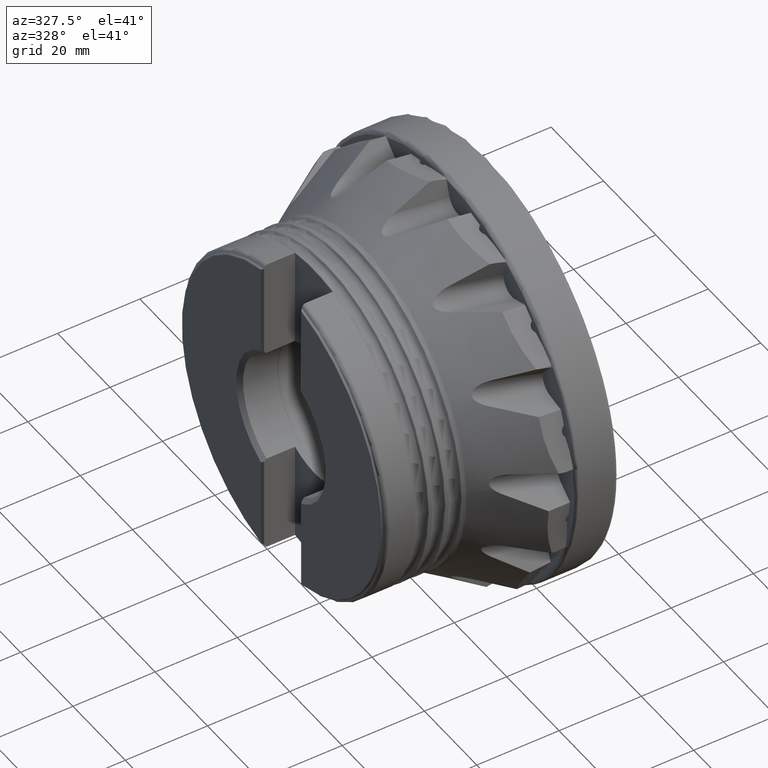
[diagram: clean part render]
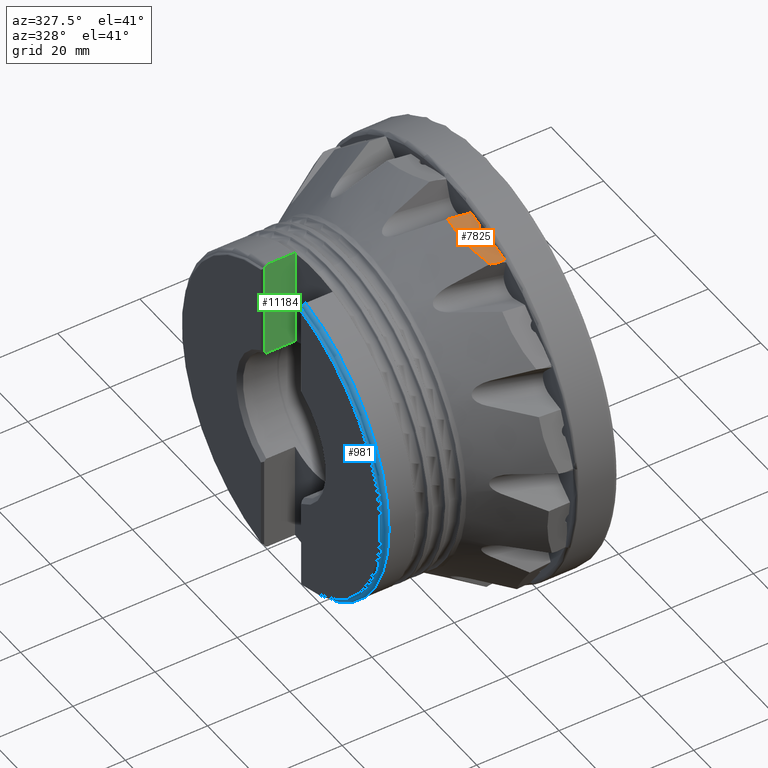
[diagram: same view with three faces highlighted in distinct colors, each labeled with its STEP entity id]
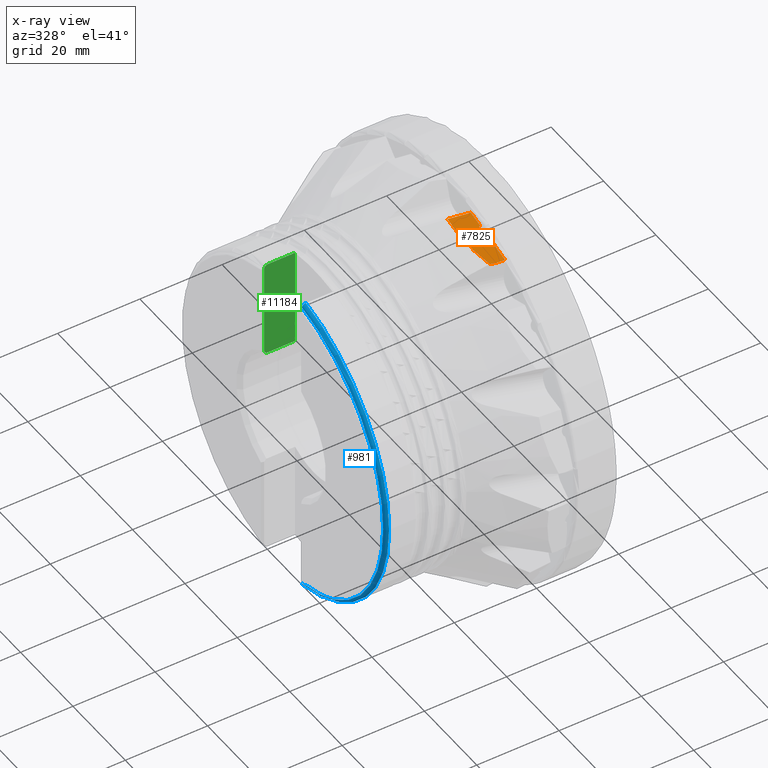
[diagram: x-ray of the same camera — body ghosted, the three highlighted faces saturated]
A machine part, auxiliary view with three faces highlighted in distinct colors.
The next image is the same camera in x-ray (body ghosted, the three faces saturated) — at least one of them is partly hidden behind the body in this view.
Their STEP definitions:

[orange] entity #7825 — the highlighted planar face has unit normal (-0.075, 0.2386, -0.9682).
#73 = B_SPLINE_CURVE_WITH_KNOTS ( 'NONE', 3,
 ( #3012, #3986, #10963, #4997 ),
 .UNSPECIFIED., .F., .F.,
 ( 4, 4 ),
 ( 0.003973531200708417500, 0.004359960465216587000 ),
 .UNSPECIFIED. ) ;
#490 = VERTEX_POINT ( 'NONE', #11337 ) ;
#491 = VERTEX_POINT ( 'NONE', #10569 ) ;
#506 = CARTESIAN_POINT ( 'NONE',  ( -15.01776938708235500, -12.28932910168083100, 46.65291763577131000 ) ) ;
#661 = CARTESIAN_POINT ( 'NONE',  ( -9.509537082797226800, -18.89254541471260800, 44.59880983032938000 ) ) ;
#756 = CARTESIAN_POINT ( 'NONE',  ( -9.493861966332495700, -13.32448857127310800, 45.96999869093540500 ) ) ;
#772 = B_SPLINE_CURVE_WITH_KNOTS ( 'NONE', 3,
 ( #5723, #11697, #12651, #6695 ),
 .UNSPECIFIED., .F., .F.,
 ( 4, 4 ),
 ( 0.009702161500550468200, 0.01343969669987816200 ),
 .UNSPECIFIED. ) ;
#984 = EDGE_CURVE ( 'NONE', #1237, #6034, #7265, .T. ) ;
#1235 = ORIENTED_EDGE ( 'NONE', *, *, #3275, .T. ) ;
#1237 = VERTEX_POINT ( 'NONE', #661 ) ;
#1239 = LINE ( 'NONE', #9553, #3855 ) ;
#1277 = ORIENTED_EDGE ( 'NONE', *, *, #5720, .T. ) ;
#1282 = VECTOR ( 'NONE', #11447, 1000.000000000000100 ) ;
#1330 = DIRECTION ( 'NONE',  ( 0.9970148915944125900, 0.03588104088907691200, -0.06836561155799110400 ) ) ;
#1387 = CARTESIAN_POINT ( 'NONE',  ( -9.492539752721622600, -12.16620775932862700, 46.25538687715629700 ) ) ;
#1511 = CARTESIAN_POINT ( 'NONE',  ( -14.84313381388667700, -15.08605795720780800, 45.95006198947714200 ) ) ;
#1793 = VERTEX_POINT ( 'NONE', #6347 ) ;
#1888 = CARTESIAN_POINT ( 'NONE',  ( -8.824743376138336300, -14.61501264202342300, 45.60009608879448700 ) ) ;
#2172 = VERTEX_POINT ( 'NONE', #756 ) ;
#2374 = VERTEX_POINT ( 'NONE', #4373 ) ;
#2401 = DIRECTION ( 'NONE',  ( -0.08711846429042964500, 0.9656617158936352500, 0.2447607477457060800 ) ) ;
#2413 = CARTESIAN_POINT ( 'NONE',  ( 3.522238160756996800, -11.21056697688843500, 45.48305814966283800 ) ) ;
#2429 = EDGE_CURVE ( 'NONE', #2374, #490, #8043, .T. ) ;
#2517 = CARTESIAN_POINT ( 'NONE',  ( -13.81637240197977200, -20.55275726667845900, 44.52312854175728100 ) ) ;
#2583 = DIRECTION ( 'NONE',  ( -0.07497872682632790400, 0.2386420226472475400, -0.9682087458551144100 ) ) ;
#2796 = AXIS2_PLACEMENT_3D ( 'NONE', #1888, #8865, #2897 ) ;
#2897 = DIRECTION ( 'NONE',  ( 0.0000000000000000000, 0.9709418174260504600, 0.2393156642875637900 ) ) ;
#3012 = CARTESIAN_POINT ( 'NONE',  ( -9.529555263469740500, -22.52179579882315600, 43.70583017242137200 ) ) ;
#3192 = ORIENTED_EDGE ( 'NONE', *, *, #5894, .T. ) ;
#3275 = EDGE_CURVE ( 'NONE', #490, #491, #6550, .T. ) ;
#3729 = LINE ( 'NONE', #4329, #9036 ) ;
#3855 = VECTOR ( 'NONE', #10556, 1000.000000000000100 ) ;
#3986 = CARTESIAN_POINT ( 'NONE',  ( -9.530359955258848700, -22.64470528756684000, 43.67559802015481600 ) ) ;
#4240 = CARTESIAN_POINT ( 'NONE',  ( -9.527000476006895400, -22.89075609186542700, 43.61469178341469900 ) ) ;
#4329 = CARTESIAN_POINT ( 'NONE',  ( 3.734943233848599500, -22.41347902355505900, 42.70531630686388500 ) ) ;
#4373 = CARTESIAN_POINT ( 'NONE',  ( -14.95412993031775200, -9.472237942189549300, 47.34233996302887700 ) ) ;
#4451 = CARTESIAN_POINT ( 'NONE',  ( -14.99053346857571300, -10.03227579022334800, 47.20712214515262400 ) ) ;
#4633 = EDGE_CURVE ( 'NONE', #1237, #12111, #772, .T. ) ;
#4924 = EDGE_LOOP ( 'NONE', ( #12121, #3192, #6316, #1235, #1277, #5270, #9313, #12136, #5285 ) ) ;
#4997 = CARTESIAN_POINT ( 'NONE',  ( -9.527000476006895400, -22.89075609186542700, 43.61469178341469900 ) ) ;
#5093 = FACE_OUTER_BOUND ( 'NONE', #4924, .T. ) ;
#5257 = VERTEX_POINT ( 'NONE', #4240 ) ;
#5270 = ORIENTED_EDGE ( 'NONE', *, *, #7927, .F. ) ;
#5285 = ORIENTED_EDGE ( 'NONE', *, *, #8847, .T. ) ;
#5306 = CARTESIAN_POINT ( 'NONE',  ( -9.529555263469740500, -22.52179579882315600, 43.70583017242137200 ) ) ;
#5712 = VECTOR ( 'NONE', #2401, 1000.000000000000100 ) ;
#5720 = EDGE_CURVE ( 'NONE', #491, #5257, #3729, .T. ) ;
#5723 = CARTESIAN_POINT ( 'NONE',  ( -9.509537082797226800, -18.89254541471260800, 44.59880983032938000 ) ) ;
#5737 = EDGE_CURVE ( 'NONE', #1793, #2172, #12635, .T. ) ;
#5894 = EDGE_CURVE ( 'NONE', #1793, #2374, #1239, .T. ) ;
#6034 = VERTEX_POINT ( 'NONE', #7753 ) ;
#6309 = CARTESIAN_POINT ( 'NONE',  ( -9.493561608285720200, -9.849702597841606200, 46.82643325223416000 ) ) ;
#6316 = ORIENTED_EDGE ( 'NONE', *, *, #2429, .T. ) ;
#6347 = CARTESIAN_POINT ( 'NONE',  ( -9.493561608285720200, -9.849702597841606200, 46.82643325223416000 ) ) ;
#6430 = CARTESIAN_POINT ( 'NONE',  ( -15.02604108072771000, -11.72337538548250200, 46.79305326375171600 ) ) ;
#6550 = LINE ( 'NONE', #9631, #1282 ) ;
#6695 = CARTESIAN_POINT ( 'NONE',  ( -9.529555263469740500, -22.52179579882315600, 43.70583017242137200 ) ) ;
#7265 = LINE ( 'NONE', #12335, #5712 ) ;
#7353 = PLANE ( 'NONE',  #8022 ) ;
#7460 = CARTESIAN_POINT ( 'NONE',  ( -14.94848232178143400, -13.97400739310665000, 46.23231609435691800 ) ) ;
#7753 = CARTESIAN_POINT ( 'NONE',  ( -9.793776456669011300, -15.74190354179665400, 45.39738499179801300 ) ) ;
#7825 = ADVANCED_FACE ( 'NONE', ( #5093 ), #7353, .F. ) ;
#7927 = EDGE_CURVE ( 'NONE', #12111, #5257, #73, .T. ) ;
#8022 = AXIS2_PLACEMENT_3D ( 'NONE', #2413, #2583, #9551 ) ;
#8043 = B_SPLINE_CURVE_WITH_KNOTS ( 'NONE', 3,
 ( #11418, #4451, #12414, #6430, #506, #7460, #1511, #8472, #2517, #9478 ),
 .UNSPECIFIED., .F., .F.,
 ( 4, 2, 2, 2, 4 ),
 ( 0.009805191087140913800, 0.01152719253080926500, 0.01324919397447761600, 0.01669319686181431100, 0.02358120263648769800 ),
 .UNSPECIFIED. ) ;
#8339 = CARTESIAN_POINT ( 'NONE',  ( -9.493861966332495700, -13.32448857127310800, 45.96999869093540500 ) ) ;
#8472 = CARTESIAN_POINT ( 'NONE',  ( -14.36043400706243200, -18.39102863980074400, 45.09807928536483200 ) ) ;
#8527 = CIRCLE ( 'NONE', #2796, 1.500000000000001100 ) ;
#8847 = EDGE_CURVE ( 'NONE', #6034, #2172, #8527, .T. ) ;
#8865 = DIRECTION ( 'NONE',  ( -0.07497872682632790400, 0.2386420226472475100, -0.9682087458551145200 ) ) ;
#9036 = VECTOR ( 'NONE', #1330, 1000.000000000000000 ) ;
#9313 = ORIENTED_EDGE ( 'NONE', *, *, #4633, .F. ) ;
#9478 = CARTESIAN_POINT ( 'NONE',  ( -13.08113840792328900, -22.67871754722466400, 43.94218938724232300 ) ) ;
#9551 = DIRECTION ( 'NONE',  ( 0.9971851335251157300, 0.01794358381787854500, -0.07279998129304615700 ) ) ;
#9553 = CARTESIAN_POINT ( 'NONE',  ( 3.564277126467819500, -10.75233256433924300, 45.59274726307548800 ) ) ;
#9631 = CARTESIAN_POINT ( 'NONE',  ( 0.4814873126665862900, -25.23372390283236300, 42.26213815810991300 ) ) ;
#10556 = DIRECTION ( 'NONE',  ( -0.9932173659157969000, 0.06865667251161441900, 0.09383776085840334100 ) ) ;
#10569 = CARTESIAN_POINT ( 'NONE',  ( -11.56605157200819500, -22.96413842182595000, 43.75451013151698700 ) ) ;
#10963 = CARTESIAN_POINT ( 'NONE',  ( -9.529554607886582900, -22.76768989415085900, 43.64522267050401900 ) ) ;
#11292 = CARTESIAN_POINT ( 'NONE',  ( -9.492439345587333900, -11.00794576375276700, 46.54086504306198400 ) ) ;
#11337 = CARTESIAN_POINT ( 'NONE',  ( -13.08113840792328900, -22.67871754722466400, 43.94218938724232300 ) ) ;
#11418 = CARTESIAN_POINT ( 'NONE',  ( -14.95412993031775200, -9.472237942189549300, 47.34233996302887700 ) ) ;
#11447 = DIRECTION ( 'NONE',  ( 0.9755127854024281400, -0.1837727751268630500, -0.1208402773853473300 ) ) ;
#11697 = CARTESIAN_POINT ( 'NONE',  ( -9.514943241611362600, -20.10227603703208000, 44.30105666821646800 ) ) ;
#12111 = VERTEX_POINT ( 'NONE', #5306 ) ;
#12121 = ORIENTED_EDGE ( 'NONE', *, *, #5737, .F. ) ;
#12136 = ORIENTED_EDGE ( 'NONE', *, *, #984, .T. ) ;
#12335 = CARTESIAN_POINT ( 'NONE',  ( -9.793776456669011300, -15.74190354179665400, 45.39738499179801300 ) ) ;
#12414 = CARTESIAN_POINT ( 'NONE',  ( -15.01236547457735400, -10.59448564744428900, 47.07024054598021200 ) ) ;
#12635 = B_SPLINE_CURVE_WITH_KNOTS ( 'NONE', 3,
 ( #6309, #11292, #1387, #8339 ),
 .UNSPECIFIED., .F., .F.,
 ( 4, 4 ),
 ( 0.0003889724498097746800, 0.003967733768353510400 ),
 .UNSPECIFIED. ) ;
#12651 = CARTESIAN_POINT ( 'NONE',  ( -9.521634870449748400, -21.31202645616741600, 44.00339817427714500 ) ) ;

[blue] entity #981 — the highlighted toroidal blend (fillet) surface has major radius 38.0005 mm and minor (blend) radius 1 mm.
#327 = ORIENTED_EDGE ( 'NONE', *, *, #9746, .T. ) ;
#813 = CARTESIAN_POINT ( 'NONE',  ( -48.90363539872626600, -7.203635398726262000, 37.54924228712156500 ) ) ;
#981 = ADVANCED_FACE ( 'NONE', ( #11793 ), #3390, .T. ) ;
#1263 = CARTESIAN_POINT ( 'NONE',  ( -48.90000000000001300, -7.200000000000005500, 37.56441585497363200 ) ) ;
#1279 = CARTESIAN_POINT ( 'NONE',  ( -47.96233724523590800, -7.200000000000000200, -38.32962300884264600 ) ) ;
#1503 = VERTEX_POINT ( 'NONE', #5637 ) ;
#1924 = CARTESIAN_POINT ( 'NONE',  ( -48.90000000000061000, -7.200000000000005500, -37.56441585497126600 ) ) ;
#2500 = VERTEX_POINT ( 'NONE', #6561 ) ;
#2630 = ORIENTED_EDGE ( 'NONE', *, *, #10605, .T. ) ;
#2848 = CARTESIAN_POINT ( 'NONE',  ( -48.91003223229757400, -7.210032232297552700, 37.51849490863445900 ) ) ;
#2939 = CARTESIAN_POINT ( 'NONE',  ( -48.72667346317494000, -7.200000000000006400, -37.96672235869620200 ) ) ;
#3092 = VERTEX_POINT ( 'NONE', #5208 ) ;
#3199 = ORIENTED_EDGE ( 'NONE', *, *, #12578, .T. ) ;
#3390 = TOROIDAL_SURFACE ( 'NONE', #10931, 38.00048585954768800, 1.000000000000003100 ) ;
#3399 = DIRECTION ( 'NONE',  ( -1.110223024625157000E-016, 1.000000000000000000, 0.0000000000000000000 ) ) ;
#3447 = CARTESIAN_POINT ( 'NONE',  ( -48.72609201094976300, -7.200000000000004600, 37.96734005914493100 ) ) ;
#3681 = CARTESIAN_POINT ( 'NONE',  ( -48.90000000000061000, -7.200000000000005500, -37.56441585497126600 ) ) ;
#3906 = DIRECTION ( 'NONE',  ( -1.000000000000000000, -1.110223024625157000E-016, 0.0000000000000000000 ) ) ;
#3908 = CARTESIAN_POINT ( 'NONE',  ( -48.38174988974429200, -7.200000000000007300, -38.22766149224298700 ) ) ;
#4145 = VERTEX_POINT ( 'NONE', #1279 ) ;
#4384 = AXIS2_PLACEMENT_3D ( 'NONE', #9881, #3906, #10010 ) ;
#4418 = CARTESIAN_POINT ( 'NONE',  ( -48.90000000000001300, -7.200000000000005500, 37.56441585497363200 ) ) ;
#4736 = VERTEX_POINT ( 'NONE', #2848 ) ;
#4738 = EDGE_CURVE ( 'NONE', #4145, #3092, #5680, .T. ) ;
#4910 = CARTESIAN_POINT ( 'NONE',  ( -48.06997590615243600, -7.200000000000007300, -38.32620772334816200 ) ) ;
#5208 = CARTESIAN_POINT ( 'NONE',  ( -47.96233724523590800, -7.200000000000000200, 38.32962300884264600 ) ) ;
#5258 = DIRECTION ( 'NONE',  ( 1.000000000000000000, 1.110223024625157000E-016, -0.0000000000000000000 ) ) ;
#5280 = B_SPLINE_CURVE_WITH_KNOTS ( 'NONE', 3,
 ( #11778, #813, #11815, #5834 ),
 .UNSPECIFIED., .F., .F.,
 ( 4, 4 ),
 ( 0.0000000000000000000, 4.806271613661908900E-005 ),
 .UNSPECIFIED. ) ;
#5637 = CARTESIAN_POINT ( 'NONE',  ( -48.90000000000061000, -7.200000000000005500, -37.56441585497126600 ) ) ;
#5647 = CARTESIAN_POINT ( 'NONE',  ( -48.90698627617000200, -7.206986276169992300, -37.53392584223129100 ) ) ;
#5680 = CIRCLE ( 'NONE', #4384, 38.99999999999999300 ) ;
#5834 = CARTESIAN_POINT ( 'NONE',  ( -48.91003223229757400, -7.210032232297552700, 37.51849490863445900 ) ) ;
#6526 = ORIENTED_EDGE ( 'NONE', *, *, #10438, .T. ) ;
#6561 = CARTESIAN_POINT ( 'NONE',  ( -48.91003223229758100, -7.210032232297575000, -37.51849490863445900 ) ) ;
#7063 = EDGE_CURVE ( 'NONE', #1503, #4145, #8829, .T. ) ;
#8362 = CARTESIAN_POINT ( 'NONE',  ( -47.93116862261793900, -6.938893903907228400E-015, 0.0000000000000000000 ) ) ;
#8410 = CARTESIAN_POINT ( 'NONE',  ( -47.96233724523590800, -7.200000000000000200, 38.32962300884264600 ) ) ;
#8531 = ORIENTED_EDGE ( 'NONE', *, *, #7063, .T. ) ;
#8559 = VERTEX_POINT ( 'NONE', #1263 ) ;
#8829 = B_SPLINE_CURVE_WITH_KNOTS ( 'NONE', 3,
 ( #1924, #11852, #2939, #9885, #3908, #10893, #4910, #11881 ),
 .UNSPECIFIED., .F., .F.,
 ( 4, 2, 2, 4 ),
 ( 0.005184883331598527700, 0.005831040136570145000, 0.006154118539055962300, 0.006477196941541778700 ),
 .UNSPECIFIED. ) ;
#9106 = CIRCLE ( 'NONE', #11736, 38.20499999999999800 ) ;
#9320 = DIRECTION ( 'NONE',  ( 1.000000000000000000, 1.110223024625157000E-016, -0.0000000000000000000 ) ) ;
#9401 = CARTESIAN_POINT ( 'NONE',  ( -48.39225672637196100, -7.200000000000006400, 38.24150855704648700 ) ) ;
#9666 = CARTESIAN_POINT ( 'NONE',  ( -48.90363539872661400, -7.203635398726612800, -37.54924228711997400 ) ) ;
#9746 = EDGE_CURVE ( 'NONE', #4736, #2500, #9106, .T. ) ;
#9879 = EDGE_LOOP ( 'NONE', ( #327, #2630, #8531, #12743, #6526, #3199 ) ) ;
#9881 = CARTESIAN_POINT ( 'NONE',  ( -47.96233724523590100, -6.942354316154858900E-015, 0.0000000000000000000 ) ) ;
#9885 = CARTESIAN_POINT ( 'NONE',  ( -48.47600629270430500, -7.200000000000004600, -38.17279749503264000 ) ) ;
#10010 = DIRECTION ( 'NONE',  ( -1.779203565104417900E-016, 1.000000000000000000, 0.0000000000000000000 ) ) ;
#10355 = CARTESIAN_POINT ( 'NONE',  ( -48.17840910247709000, -7.200000000000004600, 38.32276722790372500 ) ) ;
#10406 = CARTESIAN_POINT ( 'NONE',  ( -48.84748222388154200, -7.200000000000006400, 37.77355045890294600 ) ) ;
#10438 = EDGE_CURVE ( 'NONE', #3092, #8559, #10704, .T. ) ;
#10605 = EDGE_CURVE ( 'NONE', #2500, #1503, #12030, .T. ) ;
#10704 = B_SPLINE_CURVE_WITH_KNOTS ( 'NONE', 3,
 ( #8410, #10355, #9401, #3447, #10406, #4418 ),
 .UNSPECIFIED., .F., .F.,
 ( 4, 2, 4 ),
 ( 0.003970482837080738100, 0.004616797217377885400, 0.005263111597675031900 ),
 .UNSPECIFIED. ) ;
#10893 = CARTESIAN_POINT ( 'NONE',  ( -48.17831242304227900, -7.200000000000008200, -38.30471984060074000 ) ) ;
#10931 = AXIS2_PLACEMENT_3D ( 'NONE', #8362, #9320, #3399 ) ;
#11227 = CARTESIAN_POINT ( 'NONE',  ( -48.91003223229758100, -5.430104391945534100E-015, 0.0000000000000000000 ) ) ;
#11736 = AXIS2_PLACEMENT_3D ( 'NONE', #11227, #5258, #12197 ) ;
#11778 = CARTESIAN_POINT ( 'NONE',  ( -48.90000000000001300, -7.200000000000005500, 37.56441585497363200 ) ) ;
#11793 = FACE_OUTER_BOUND ( 'NONE', #9879, .T. ) ;
#11815 = CARTESIAN_POINT ( 'NONE',  ( -48.90698627616984600, -7.206986276169834200, 37.53392584223209400 ) ) ;
#11852 = CARTESIAN_POINT ( 'NONE',  ( -48.84749663185538500, -7.200000000000006400, -37.77349308393374400 ) ) ;
#11881 = CARTESIAN_POINT ( 'NONE',  ( -47.96233724523590800, -7.200000000000000200, -38.32962300884264600 ) ) ;
#12030 = B_SPLINE_CURVE_WITH_KNOTS ( 'NONE', 3,
 ( #12594, #5647, #9666, #3681 ),
 .UNSPECIFIED., .F., .F.,
 ( 4, 4 ),
 ( 0.0000000000000000000, 4.806271613424440900E-005 ),
 .UNSPECIFIED. ) ;
#12197 = DIRECTION ( 'NONE',  ( -1.816226646749700000E-016, 1.000000000000000000, 0.0000000000000000000 ) ) ;
#12578 = EDGE_CURVE ( 'NONE', #8559, #4736, #5280, .T. ) ;
#12594 = CARTESIAN_POINT ( 'NONE',  ( -48.91003223229758100, -7.210032232297575000, -37.51849490863445900 ) ) ;
#12743 = ORIENTED_EDGE ( 'NONE', *, *, #4738, .T. ) ;

[green] entity #11184 — the highlighted planar face has unit normal (-0, 1, 0).
#93 = ORIENTED_EDGE ( 'NONE', *, *, #4768, .T. ) ;
#106 = PLANE ( 'NONE',  #10511 ) ;
#277 = CARTESIAN_POINT ( 'NONE',  ( -48.17913385324696700, 7.199999999999994000, 38.32274423216250600 ) ) ;
#334 = CARTESIAN_POINT ( 'NONE',  ( -48.89999999999997700, 7.199999999999994000, 37.56441585497378100 ) ) ;
#373 = CARTESIAN_POINT ( 'NONE',  ( -48.90000000000782900, 7.199999999999994000, 14.92952192805447900 ) ) ;
#448 = CARTESIAN_POINT ( 'NONE',  ( -41.41400853916120900, 7.199999999999995700, 38.31478924255505800 ) ) ;
#722 = FACE_OUTER_BOUND ( 'NONE', #1713, .T. ) ;
#932 = B_SPLINE_CURVE_WITH_KNOTS ( 'NONE', 3,
 ( #9406, #448, #2441, #5440, #12388, #6411 ),
 .UNSPECIFIED., .F., .F.,
 ( 4, 2, 4 ),
 ( 0.0004841054120339517400, 0.0005309756481515498400, 0.0005778458842691479300 ),
 .UNSPECIFIED. ) ;
#1103 = DIRECTION ( 'NONE',  ( -1.000000000000000000, -1.182203921591919000E-016, 0.0000000000000000000 ) ) ;
#1636 = LINE ( 'NONE', #12664, #9122 ) ;
#1674 = VECTOR ( 'NONE', #6260, 1000.000000000000000 ) ;
#1713 = EDGE_LOOP ( 'NONE', ( #10545, #12248, #12804, #4971, #2582, #7758, #93 ) ) ;
#1779 = LINE ( 'NONE', #7900, #4425 ) ;
#2223 = CARTESIAN_POINT ( 'NONE',  ( -48.84687460813636800, 7.199999999999994000, 37.77597008683836300 ) ) ;
#2248 = LINE ( 'NONE', #8576, #7551 ) ;
#2366 = VERTEX_POINT ( 'NONE', #373 ) ;
#2441 = CARTESIAN_POINT ( 'NONE',  ( -41.42863847352347100, 7.199999999999995700, 38.32026835064694100 ) ) ;
#2582 = ORIENTED_EDGE ( 'NONE', *, *, #4561, .T. ) ;
#2656 = CARTESIAN_POINT ( 'NONE',  ( -41.49059737205869400, 7.199999999999994800, 38.32962300884264600 ) ) ;
#2746 = B_SPLINE_CURVE_WITH_KNOTS ( 'NONE', 3,
 ( #9201, #2223, #12174, #6216, #277, #7204 ),
 .UNSPECIFIED., .F., .F.,
 ( 4, 2, 4 ),
 ( 0.001048750006314844000, 0.001695395406087252100, 0.002342040805859660300 ),
 .UNSPECIFIED. ) ;
#2815 = B_SPLINE_CURVE_WITH_KNOTS ( 'NONE', 3,
 ( #6828, #4677, #10852, #4858 ),
 .UNSPECIFIED., .F., .F.,
 ( 4, 4 ),
 ( 0.03035726334068336600, 0.03110585542391135200 ),
 .UNSPECIFIED. ) ;
#3287 = VERTEX_POINT ( 'NONE', #11619 ) ;
#3291 = CARTESIAN_POINT ( 'NONE',  ( -8.511868235461817200E-016, 7.200000000000000200, 14.37239106759900800 ) ) ;
#4035 = CARTESIAN_POINT ( 'NONE',  ( -41.39999999999999900, 7.199999999999994800, -40.00000000000000000 ) ) ;
#4425 = VECTOR ( 'NONE', #10857, 1000.000000000000000 ) ;
#4561 = EDGE_CURVE ( 'NONE', #11526, #7156, #2248, .T. ) ;
#4677 = CARTESIAN_POINT ( 'NONE',  ( -48.73299663739375400, 7.199999999999994000, 14.74411205701714200 ) ) ;
#4768 = EDGE_CURVE ( 'NONE', #7421, #9616, #1779, .T. ) ;
#4858 = CARTESIAN_POINT ( 'NONE',  ( -48.39999999999999900, 7.199999999999994000, 14.37239106759902700 ) ) ;
#4971 = ORIENTED_EDGE ( 'NONE', *, *, #11730, .F. ) ;
#5440 = CARTESIAN_POINT ( 'NONE',  ( -41.45913352478892500, 7.199999999999995700, 38.32772141172941400 ) ) ;
#6216 = CARTESIAN_POINT ( 'NONE',  ( -48.39120802317756900, 7.199999999999994000, 38.24243265969254000 ) ) ;
#6260 = DIRECTION ( 'NONE',  ( -1.000000000000000000, 0.0000000000000000000, 0.0000000000000000000 ) ) ;
#6313 = EDGE_CURVE ( 'NONE', #7156, #7421, #932, .T. ) ;
#6411 = CARTESIAN_POINT ( 'NONE',  ( -41.49059737205869400, 7.199999999999994800, 38.32962300884264600 ) ) ;
#6828 = CARTESIAN_POINT ( 'NONE',  ( -48.90000000000782900, 7.199999999999994000, 14.92952192805447900 ) ) ;
#6886 = CARTESIAN_POINT ( 'NONE',  ( -47.96233724523590800, 7.200000000000000200, 38.32962300884264600 ) ) ;
#7036 = DIRECTION ( 'NONE',  ( -1.182203921591919000E-016, 1.000000000000000000, 0.0000000000000000000 ) ) ;
#7156 = VERTEX_POINT ( 'NONE', #8977 ) ;
#7204 = CARTESIAN_POINT ( 'NONE',  ( -47.96233724523590800, 7.200000000000000200, 38.32962300884264600 ) ) ;
#7421 = VERTEX_POINT ( 'NONE', #2656 ) ;
#7551 = VECTOR ( 'NONE', #10530, 1000.000000000000000 ) ;
#7758 = ORIENTED_EDGE ( 'NONE', *, *, #6313, .T. ) ;
#7900 = CARTESIAN_POINT ( 'NONE',  ( -8.511868235461817200E-016, 7.200000000000000200, 38.32962300884264600 ) ) ;
#7985 = CARTESIAN_POINT ( 'NONE',  ( -41.39999999999999900, 7.199999999999994800, 14.37239106759900800 ) ) ;
#8576 = CARTESIAN_POINT ( 'NONE',  ( -41.39999999999999900, 7.199999999999994800, -40.00000000000000000 ) ) ;
#8977 = CARTESIAN_POINT ( 'NONE',  ( -41.39999999999999900, 7.199999999999994800, 38.30754676225975400 ) ) ;
#9122 = VECTOR ( 'NONE', #10699, 1000.000000000000000 ) ;
#9201 = CARTESIAN_POINT ( 'NONE',  ( -48.89999999999997700, 7.199999999999994000, 37.56441585497378100 ) ) ;
#9406 = CARTESIAN_POINT ( 'NONE',  ( -41.39999999999999900, 7.199999999999994800, 38.30754676225975400 ) ) ;
#9616 = VERTEX_POINT ( 'NONE', #6886 ) ;
#9624 = LINE ( 'NONE', #3291, #1674 ) ;
#10024 = EDGE_CURVE ( 'NONE', #12872, #2366, #1636, .T. ) ;
#10511 = AXIS2_PLACEMENT_3D ( 'NONE', #4035, #7036, #1103 ) ;
#10530 = DIRECTION ( 'NONE',  ( -0.0000000000000000000, -0.0000000000000000000, 1.000000000000000000 ) ) ;
#10545 = ORIENTED_EDGE ( 'NONE', *, *, #11248, .F. ) ;
#10624 = EDGE_CURVE ( 'NONE', #2366, #3287, #2815, .T. ) ;
#10699 = DIRECTION ( 'NONE',  ( 0.0000000000000000000, 0.0000000000000000000, -1.000000000000000000 ) ) ;
#10852 = CARTESIAN_POINT ( 'NONE',  ( -48.56631835363817400, 7.199999999999994000, 14.55841213550335700 ) ) ;
#10857 = DIRECTION ( 'NONE',  ( -1.000000000000000000, 0.0000000000000000000, 0.0000000000000000000 ) ) ;
#11184 = ADVANCED_FACE ( 'NONE', ( #722 ), #106, .F. ) ;
#11248 = EDGE_CURVE ( 'NONE', #12872, #9616, #2746, .T. ) ;
#11526 = VERTEX_POINT ( 'NONE', #7985 ) ;
#11619 = CARTESIAN_POINT ( 'NONE',  ( -48.39999999999999900, 7.199999999999994000, 14.37239106759902700 ) ) ;
#11730 = EDGE_CURVE ( 'NONE', #11526, #3287, #9624, .T. ) ;
#12174 = CARTESIAN_POINT ( 'NONE',  ( -48.72748682843639000, 7.199999999999993100, 37.96613163893455600 ) ) ;
#12248 = ORIENTED_EDGE ( 'NONE', *, *, #10024, .T. ) ;
#12388 = CARTESIAN_POINT ( 'NONE',  ( -41.47497293686554100, 7.199999999999994800, 38.32962300884265300 ) ) ;
#12664 = CARTESIAN_POINT ( 'NONE',  ( -48.89999999999999900, 7.199999999999994000, 15.48275250076675900 ) ) ;
#12804 = ORIENTED_EDGE ( 'NONE', *, *, #10624, .T. ) ;
#12872 = VERTEX_POINT ( 'NONE', #334 ) ;